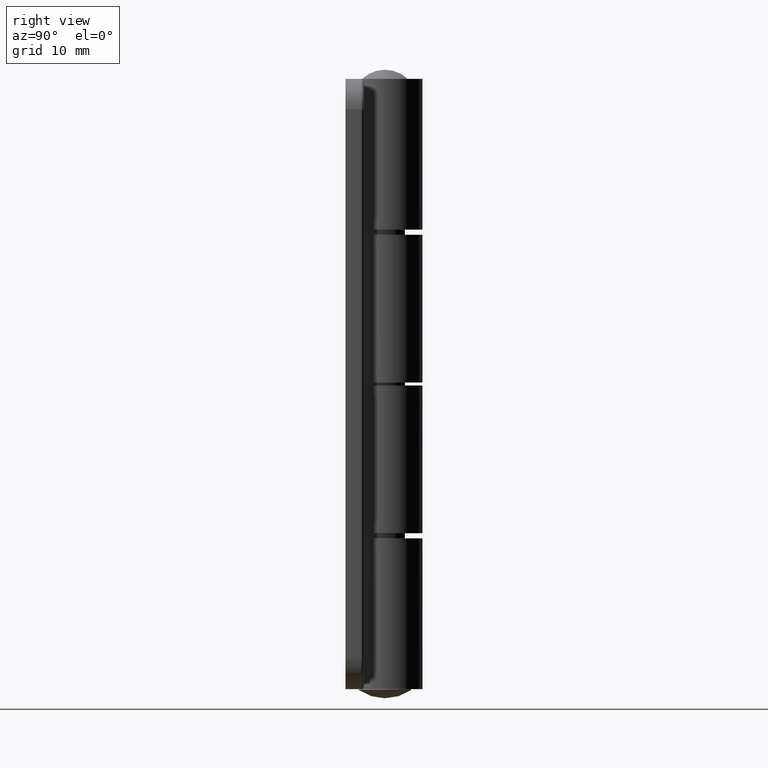
[diagram: clean part render]
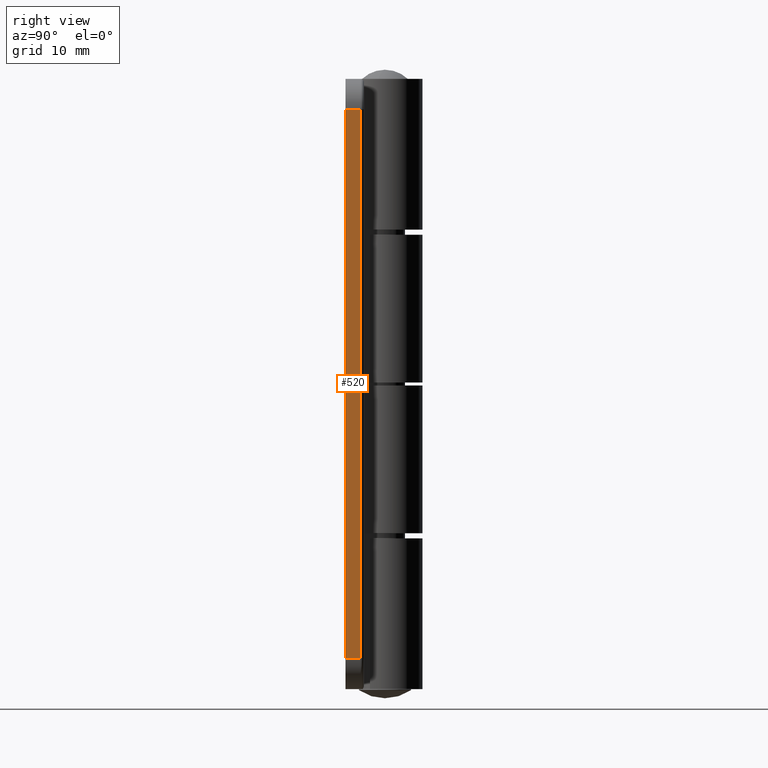
[diagram: same view with one face highlighted and labeled with its STEP entity id]
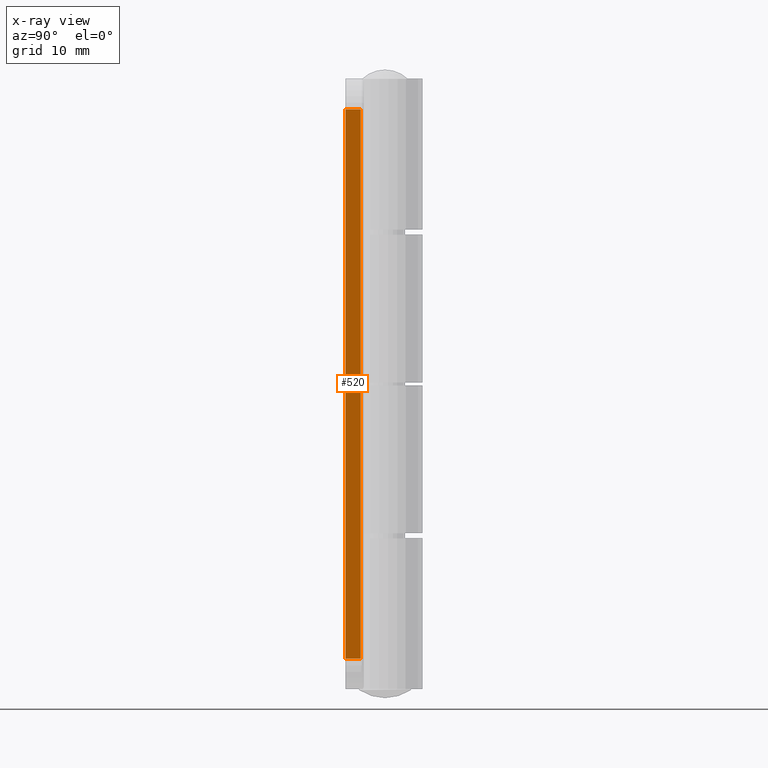
[diagram: x-ray of the same camera — body ghosted, the highlighted face saturated]
A machine part, right view. The second image highlights one B-rep face of the part: STEP entity #520.
The next image is the same camera in x-ray: the body ghosted, the highlighted face saturated — about 0% of this face is hidden behind the body in this view.
In plain terms, the highlighted planar face has unit normal (1, 0, 0).
Its self-contained STEP definition (entity closure, byte-faithful):
#38=PLANE('',#570);
#53=LINE('',#826,#94);
#60=LINE('',#852,#101);
#61=LINE('',#856,#102);
#62=LINE('',#857,#103);
#94=VECTOR('',#642,90.);
#101=VECTOR('',#669,2.5);
#102=VECTOR('',#674,2.5);
#103=VECTOR('',#675,90.);
#153=FACE_OUTER_BOUND('',#185,.T.);
#185=EDGE_LOOP('',(#399,#400,#401,#402));
#251=VERTEX_POINT('',#818);
#253=VERTEX_POINT('',#824);
#262=VERTEX_POINT('',#851);
#263=VERTEX_POINT('',#855);
#303=EDGE_CURVE('',#253,#251,#53,.T.);
#316=EDGE_CURVE('',#251,#262,#60,.T.);
#318=EDGE_CURVE('',#263,#253,#61,.T.);
#319=EDGE_CURVE('',#262,#263,#62,.T.);
#399=ORIENTED_EDGE('',*,*,#303,.F.);
#400=ORIENTED_EDGE('',*,*,#318,.F.);
#401=ORIENTED_EDGE('',*,*,#319,.F.);
#402=ORIENTED_EDGE('',*,*,#316,.F.);
#520=ADVANCED_FACE('',(#153),#38,.T.);
#570=AXIS2_PLACEMENT_3D('',#854,#672,#673);
#642=DIRECTION('',(0.,0.,1.));
#669=DIRECTION('',(0.,-1.,0.));
#672=DIRECTION('center_axis',(-1.,0.,0.));
#673=DIRECTION('ref_axis',(0.,1.,0.));
#674=DIRECTION('',(0.,1.,0.));
#675=DIRECTION('',(0.,0.,-1.));
#818=CARTESIAN_POINT('',(-30.,2.5,-5.));
#824=CARTESIAN_POINT('',(-30.,2.5,-95.));
#826=CARTESIAN_POINT('',(-30.,2.5,0.));
#851=CARTESIAN_POINT('',(-30.,-3.67394039744206E-15,-5.));
#852=CARTESIAN_POINT('',(-30.,3.30780771028753,-5.));
#854=CARTESIAN_POINT('Origin',(-30.,-3.88578058618805E-15,0.));
#855=CARTESIAN_POINT('',(-30.,-3.67394039744206E-15,-95.));
#856=CARTESIAN_POINT('',(-30.,3.30780771028753,-95.));
#857=CARTESIAN_POINT('',(-30.,-3.67394039744206E-15,0.));